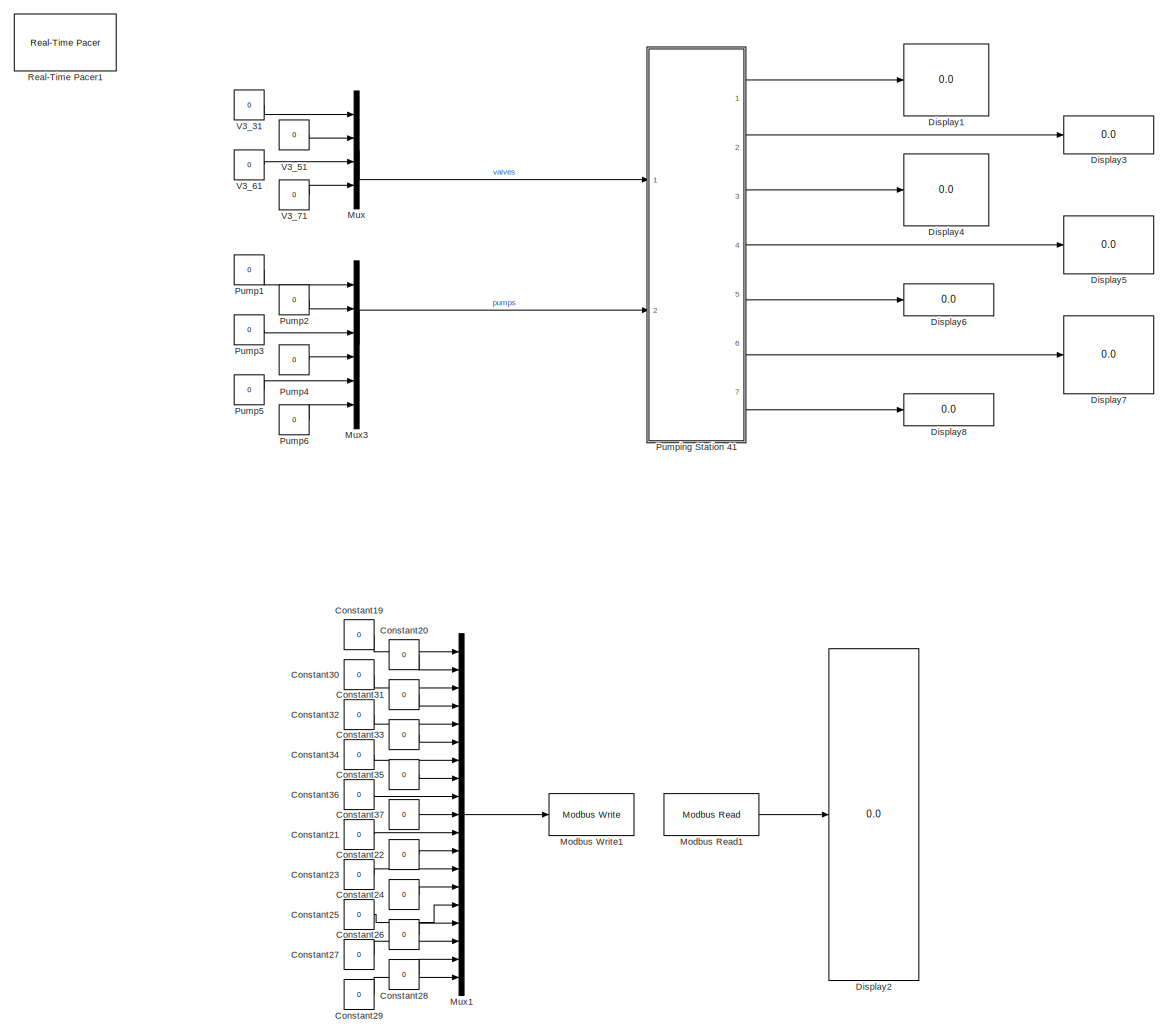
[diagram: root canvas - part 1/1, most of the canvas]
MODEL slx_439d79ee7441
KIND model
CONFIG AbsTol = auto
CONFIG EnableMultiTasking = off
CONFIG FixedStep = 0.5
CONFIG MaxStep = 0.2
CONFIG MinStep = auto
CONFIG RelTol = 1e-3
CONFIG SampleTimeConstraint = Unconstrained
CONFIG Solver = FixedStepAuto
CONFIG SolverName = FixedStepAuto
CONFIG StartTime = 0.0
CONFIG StopTime = inf
BLOCK [Constant] Constant19
  Value = 0
BLOCK [Constant] Constant20
  Value = 0
BLOCK [Constant] Constant21
  Value = 0
BLOCK [Constant] Constant22
  Value = 0
BLOCK [Constant] Constant23
  Value = 0
BLOCK [Constant] Constant24
  Value = 0
BLOCK [Constant] Constant25
  Value = 0
BLOCK [Constant] Constant26
  Value = 0
BLOCK [Constant] Constant27
  Value = 0
BLOCK [Constant] Constant28
  Value = 0
BLOCK [Constant] Constant29
  Value = 0
BLOCK [Constant] Constant30
  Value = 0
BLOCK [Constant] Constant31
  Value = 0
BLOCK [Constant] Constant32
  Value = 0
BLOCK [Constant] Constant33
  Value = 0
BLOCK [Constant] Constant34
  Value = 0
BLOCK [Constant] Constant35
  Value = 0
BLOCK [Constant] Constant36
  Value = 0
BLOCK [Constant] Constant37
  Value = 0
BLOCK [Display] Display1
  Decimation = 1
  Format = long
  Ports = [1]
BLOCK [Display] Display2
  Decimation = 1
  Format = long
  Ports = [1]
BLOCK [Display] Display3
  Decimation = 1
  Format = long
  Ports = [1]
BLOCK [Display] Display4
  Decimation = 1
  Format = long
  Ports = [1]
BLOCK [Display] Display5
  Decimation = 1
  Format = long
  Ports = [1]
BLOCK [Display] Display6
  Decimation = 1
  Format = long
  Ports = [1]
BLOCK [Display] Display7
  Decimation = 1
  Format = long
  Ports = [1]
BLOCK [Display] Display8
  Decimation = 1
  Format = long
  Ports = [1]
BLOCK [Reference] Modbus Read1  REF=modbusMatLib/Modbus Read
  Ports = [0, 1]
  SourceBlock = modbusMatLib/Modbus Read
  SourceType = Modbus Read
BLOCK [Reference] Modbus Write1  REF=modbusMatLib/Modbus Write
  Ports = [1]
  SourceBlock = modbusMatLib/Modbus Write
  SourceType = Modbus Write
BLOCK [Mux] Mux
  DisplayOption = bar
  Ports = [4, 1]
BLOCK [Mux] Mux1
  DisplayOption = bar
  Inputs = 19
  Ports = [19, 1]
BLOCK [Mux] Mux3
  DisplayOption = bar
  Inputs = 6
  Ports = [6, 1]
BLOCK [Constant] Pump1
  Value = 0
BLOCK [Constant] Pump2
  Value = 0
BLOCK [Constant] Pump3
  Value = 0
BLOCK [Constant] Pump4
  Value = 0
BLOCK [Constant] Pump5
  Value = 0
BLOCK [Constant] Pump6
  Value = 0
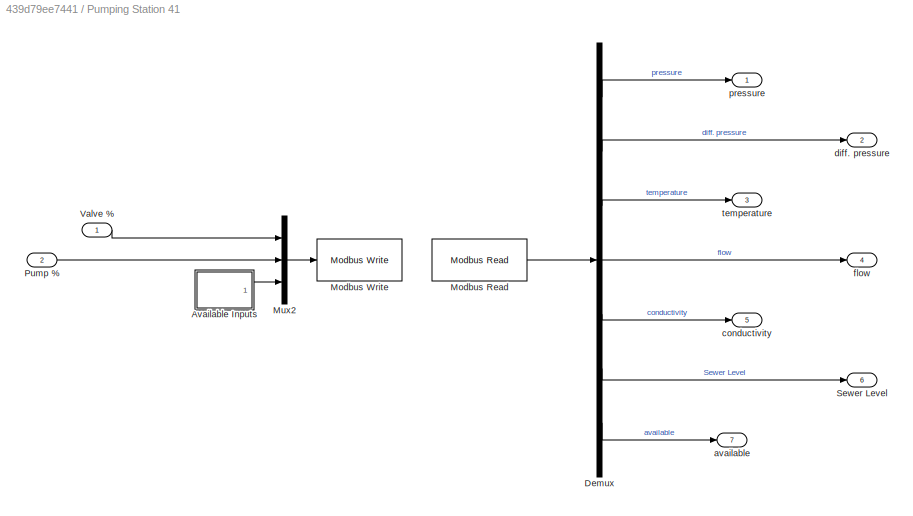
BLOCK [SubSystem] Pumping Station 41
  Ports = [2, 7]
  RequestExecContextInheritance = off
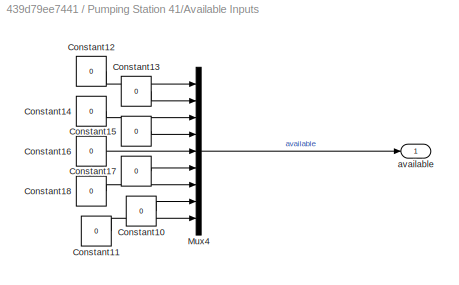
BLOCK [SubSystem] Pumping Station 41/Available Inputs
  Ports = [0, 1]
  RequestExecContextInheritance = off
BLOCK [Constant] Pumping Station 41/Available Inputs/Constant10
  Value = 0
BLOCK [Constant] Pumping Station 41/Available Inputs/Constant11
  Value = 0
BLOCK [Constant] Pumping Station 41/Available Inputs/Constant12
  Value = 0
BLOCK [Constant] Pumping Station 41/Available Inputs/Constant13
  Value = 0
BLOCK [Constant] Pumping Station 41/Available Inputs/Constant14
  Value = 0
BLOCK [Constant] Pumping Station 41/Available Inputs/Constant15
  Value = 0
BLOCK [Constant] Pumping Station 41/Available Inputs/Constant16
  Value = 0
BLOCK [Constant] Pumping Station 41/Available Inputs/Constant17
  Value = 0
BLOCK [Constant] Pumping Station 41/Available Inputs/Constant18
  Value = 0
BLOCK [Mux] Pumping Station 41/Available Inputs/Mux4
  DisplayOption = bar
  Inputs = 9
  Ports = [9, 1]
BLOCK [Outport] Pumping Station 41/Available Inputs/available
  IconDisplay = Port number
BLOCK [Demux] Pumping Station 41/Demux
  DisplayOption = bar
  Outputs = [4 2 4 3 1 4 -1]
  Ports = [1, 7]
BLOCK [Reference] Pumping Station 41/Modbus Read  REF=modbusMatLib/Modbus Read
  Ports = [0, 1]
  SourceBlock = modbusMatLib/Modbus Read
  SourceType = Modbus Read
BLOCK [Reference] Pumping Station 41/Modbus Write  REF=modbusMatLib/Modbus Write
  Ports = [1]
  SourceBlock = modbusMatLib/Modbus Write
  SourceType = Modbus Write
BLOCK [Mux] Pumping Station 41/Mux2
  DisplayOption = bar
  Inputs = 3
  Ports = [3, 1]
BLOCK [Inport] Pumping Station 41/Pump %
  IconDisplay = Port number
  Port = 2
BLOCK [Outport] Pumping Station 41/Sewer Level
  IconDisplay = Port number
  Port = 6
BLOCK [Inport] Pumping Station 41/Valve %
  IconDisplay = Port number
BLOCK [Outport] Pumping Station 41/available
  IconDisplay = Port number
  Port = 7
BLOCK [Outport] Pumping Station 41/conductivity
  IconDisplay = Port number
  Port = 5
BLOCK [Outport] Pumping Station 41/diff. pressure
  IconDisplay = Port number
  Port = 2
BLOCK [Outport] Pumping Station 41/flow
  IconDisplay = Port number
  Port = 4
BLOCK [Outport] Pumping Station 41/pressure
  IconDisplay = Port number
BLOCK [Outport] Pumping Station 41/temperature
  IconDisplay = Port number
  Port = 3
BLOCK [Reference] Real-Time Pacer1  REF=realtime_pacer_lib/Real-Time Pacer
  Ports = []
  SourceBlock = realtime_pacer_lib/Real-Time Pacer
  SourceType = RealTime_Pacer
BLOCK [Constant] V3_31
  Value = 0
BLOCK [Constant] V3_51
  Value = 0
BLOCK [Constant] V3_61
  Value = 0
BLOCK [Constant] V3_71
  Value = 0
LINE Constant19:1 -> Mux1:1
LINE Constant20:1 -> Mux1:2
LINE Constant21:1 -> Mux1:11
LINE Constant22:1 -> Mux1:12
LINE Constant23:1 -> Mux1:13
LINE Constant24:1 -> Mux1:14
LINE Constant25:1 -> Mux1:15
LINE Constant26:1 -> Mux1:16
LINE Constant27:1 -> Mux1:17
LINE Constant28:1 -> Mux1:18
LINE Constant29:1 -> Mux1:19
LINE Constant30:1 -> Mux1:3
LINE Constant31:1 -> Mux1:4
LINE Constant32:1 -> Mux1:5
LINE Constant33:1 -> Mux1:6
LINE Constant34:1 -> Mux1:7
LINE Constant35:1 -> Mux1:8
LINE Constant36:1 -> Mux1:9
LINE Constant37:1 -> Mux1:10
LINE Modbus Read1:1 -> Display2:1
LINE Mux1:1 -> Modbus Write1:1
LINE Mux3:1 -> Pumping Station 41:2
LINE Mux:1 -> Pumping Station 41:1
LINE Pump1:1 -> Mux3:1
LINE Pump2:1 -> Mux3:2
LINE Pump3:1 -> Mux3:3
LINE Pump4:1 -> Mux3:4
LINE Pump5:1 -> Mux3:5
LINE Pump6:1 -> Mux3:6
LINE Pumping Station 41/Available Inputs/Constant10:1 -> Pumping Station 41/Available Inputs/Mux4:8
LINE Pumping Station 41/Available Inputs/Constant11:1 -> Pumping Station 41/Available Inputs/Mux4:9
LINE Pumping Station 41/Available Inputs/Constant12:1 -> Pumping Station 41/Available Inputs/Mux4:1
LINE Pumping Station 41/Available Inputs/Constant13:1 -> Pumping Station 41/Available Inputs/Mux4:2
LINE Pumping Station 41/Available Inputs/Constant14:1 -> Pumping Station 41/Available Inputs/Mux4:3
LINE Pumping Station 41/Available Inputs/Constant15:1 -> Pumping Station 41/Available Inputs/Mux4:4
LINE Pumping Station 41/Available Inputs/Constant16:1 -> Pumping Station 41/Available Inputs/Mux4:5
LINE Pumping Station 41/Available Inputs/Constant17:1 -> Pumping Station 41/Available Inputs/Mux4:6
LINE Pumping Station 41/Available Inputs/Constant18:1 -> Pumping Station 41/Available Inputs/Mux4:7
LINE Pumping Station 41/Available Inputs/Mux4:1 -> Pumping Station 41/Available Inputs/available:1
LINE Pumping Station 41/Available Inputs:1 -> Pumping Station 41/Mux2:3
LINE Pumping Station 41/Demux:1 -> Pumping Station 41/pressure:1
LINE Pumping Station 41/Demux:2 -> Pumping Station 41/diff. pressure:1
LINE Pumping Station 41/Demux:3 -> Pumping Station 41/temperature:1
LINE Pumping Station 41/Demux:4 -> Pumping Station 41/flow:1
LINE Pumping Station 41/Demux:5 -> Pumping Station 41/conductivity:1
LINE Pumping Station 41/Demux:6 -> Pumping Station 41/Sewer Level:1
LINE Pumping Station 41/Demux:7 -> Pumping Station 41/available:1
LINE Pumping Station 41/Modbus Read:1 -> Pumping Station 41/Demux:1
LINE Pumping Station 41/Mux2:1 -> Pumping Station 41/Modbus Write:1
LINE Pumping Station 41/Pump %:1 -> Pumping Station 41/Mux2:2
LINE Pumping Station 41/Valve %:1 -> Pumping Station 41/Mux2:1
LINE Pumping Station 41:1 -> Display1:1
LINE Pumping Station 41:2 -> Display3:1
LINE Pumping Station 41:3 -> Display4:1
LINE Pumping Station 41:4 -> Display5:1
LINE Pumping Station 41:5 -> Display6:1
LINE Pumping Station 41:6 -> Display7:1
LINE Pumping Station 41:7 -> Display8:1
LINE V3_31:1 -> Mux:1
LINE V3_51:1 -> Mux:2
LINE V3_61:1 -> Mux:3
LINE V3_71:1 -> Mux:4
